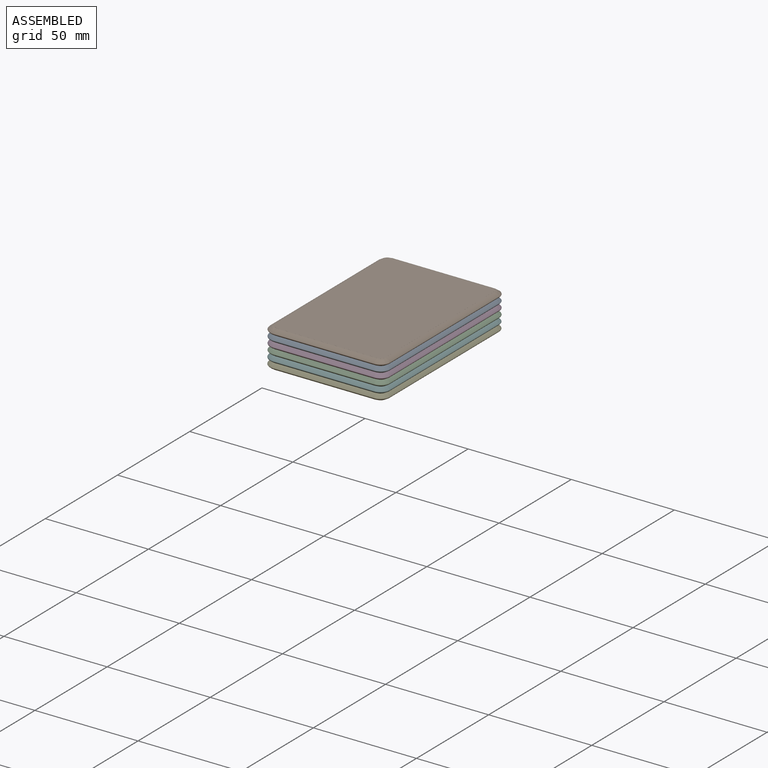
[diagram: assembled view]
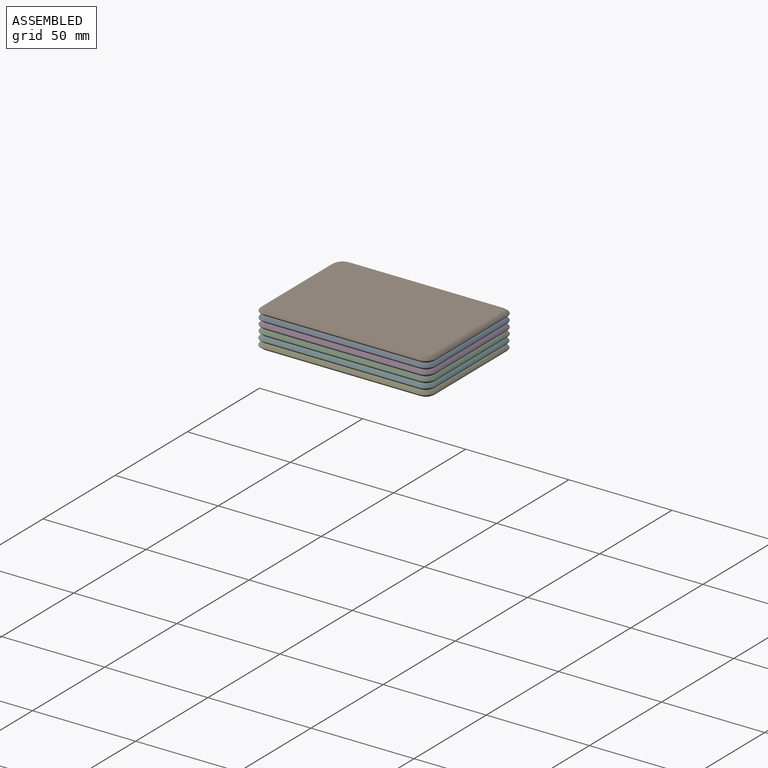
[diagram: assembled view, second angle]
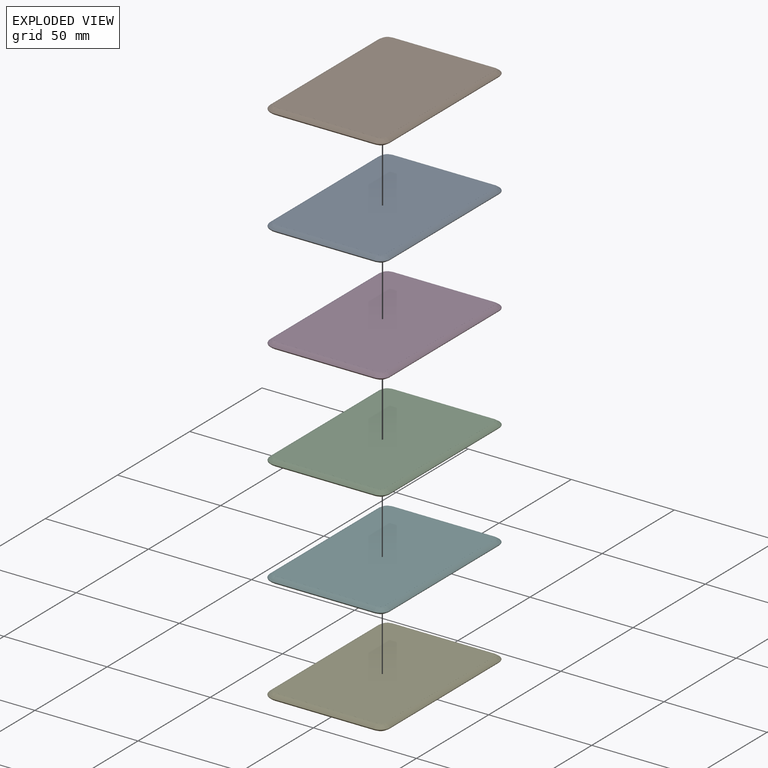
[diagram: exploded view]
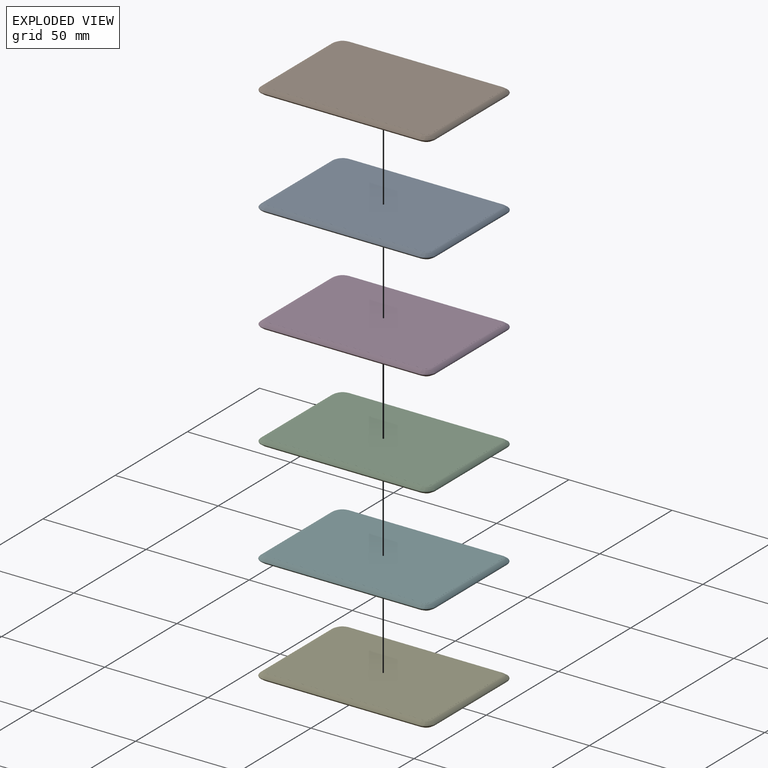
[diagram: exploded view, second angle]
ASSEMBLY  parts=6 mates=5
PART A: 34 faces, bbox 59x85x3 mm
  f0: plane 75.66x0.01mm, normal (1,0,0), area 0.6mm2, adj f1,f7,f8,f16
  f1: cylinder r=2mm len=2mm, axis (0,0,-1), area 0mm2, adj f0,f2,f8,f9
  f2: plane 49.66x0.01mm, normal (0,1,0), area 0.4mm2, adj f1,f3,f8,f10
  f3: cylinder r=2mm len=2mm, axis (0,0,-1), area 0mm2, adj f2,f4,f8,f11
  f4: plane 74.66x0.01mm, normal (-1,0,0), area 0.6mm2, adj f3,f5,f8,f12
  f5: cylinder r=3mm len=3mm, axis (0,0,-1), area 0mm2, adj f4,f6,f8,f13
  f6: plane 48.66x0.01mm, normal (0,-1,0), area 0.4mm2, adj f5,f7,f8,f15
  f7: cylinder r=2mm len=2mm, axis (0,0,-1), area 0mm2, adj f0,f6,f8,f14
  f8: plane 79.66x53.66mm, normal (0,0,1), area 4270.4mm2, adj f0,f1,f2,f3,f4,f5,f6,f7
  f9: bspline ~4.66x4.66mm, area 17.2mm2, adj f1,f10,f16,f26
  f10: bspline ~49.66x3mm, area 157.8mm2, adj f2,f9,f11,f27
  f11: bspline ~4.66x4.66mm, area 17.2mm2, adj f3,f10,f12,f28
  f12: bspline ~74.66x3mm, area 237.3mm2, adj f4,f11,f13,f29
  f13: bspline ~5.66x5.66mm, area 22.2mm2, adj f5,f12,f15,f30
  f14: bspline ~4.66x4.66mm, area 17.2mm2, adj f7,f15,f16,f31
  f15: bspline ~48.66x3mm, area 154.7mm2, adj f6,f13,f14,f32
  f16: bspline ~75.66x3mm, area 240.5mm2, adj f0,f9,f14,f33
  f17: plane 75.66x0.01mm, normal (1,0,0), area 0.6mm2, adj f18,f24,f25,f33
  f18: cylinder r=2mm len=2mm, axis (0,0,1), area 0mm2, adj f17,f19,f25,f26
  f19: plane 49.66x0.01mm, normal (0,1,0), area 0.4mm2, adj f18,f20,f25,f27
  f20: cylinder r=2mm len=2mm, axis (0,0,1), area 0mm2, adj f19,f21,f25,f28
  f21: plane 74.66x0.01mm, normal (-1,0,0), area 0.6mm2, adj f20,f22,f25,f29
  f22: cylinder r=3mm len=3mm, axis (0,0,1), area 0mm2, adj f21,f23,f25,f30
  f23: plane 48.66x0.01mm, normal (0,-1,0), area 0.4mm2, adj f22,f24,f25,f32
  f24: cylinder r=2mm len=2mm, axis (0,0,1), area 0mm2, adj f17,f23,f25,f31
  f25: plane 79.66x53.66mm, normal (0,0,-1), area 4270.4mm2, adj f17,f18,f19,f20,f21,f22,f23,f24
  f26: bspline ~4.66x4.66mm, area 17.2mm2, adj f9,f18,f27,f33
  f27: bspline ~49.66x3mm, area 157.8mm2, adj f10,f19,f26,f28
  f28: bspline ~4.66x4.66mm, area 17.2mm2, adj f11,f20,f27,f29
  f29: bspline ~74.66x3mm, area 237.3mm2, adj f12,f21,f28,f30
  f30: bspline ~5.66x5.66mm, area 22.2mm2, adj f13,f22,f29,f32
  f31: bspline ~4.66x4.66mm, area 17.2mm2, adj f14,f24,f32,f33
  f32: bspline ~48.66x3mm, area 154.7mm2, adj f15,f23,f30,f31
  f33: bspline ~75.66x3mm, area 240.5mm2, adj f16,f17,f26,f31
PART B: same geometry as A
PART C: same geometry as A
PART D: same geometry as A
PART E: same geometry as A
PART F: same geometry as A
PLACE A t=(-0.7,0,10)mm
PLACE B t=(-0.7,0,13)mm
PLACE C t=(-0.7,0,4)mm
PLACE D t=(-0.7,0,7)mm
PLACE E t=(-0.7,-0.12,-2)mm
PLACE F t=(-0.7,-0.12,1)mm
MATE planar F.f8 <-> C.f25  axis (0,0,1) through (-0.69,-0.11,2.5)mm
MATE planar A.f25 <-> D.f8  axis (0,0,-1) through (-0.69,0.01,8.5)mm
MATE planar D.f25 <-> C.f8  axis (0,0,-1) through (-0.69,0.01,5.5)mm
MATE planar E.f8 <-> F.f25  axis (0,0,1) through (-0.69,-0.11,-0.5)mm
MATE planar B.f25 <-> A.f8  axis (0,0,-1) through (-0.69,0.01,11.5)mm
